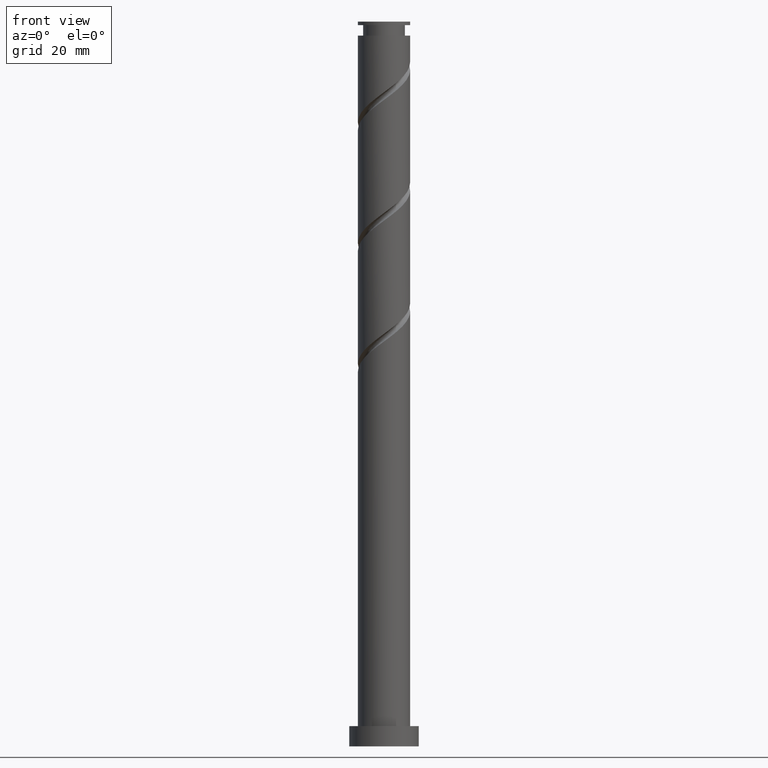
[diagram: clean part render]
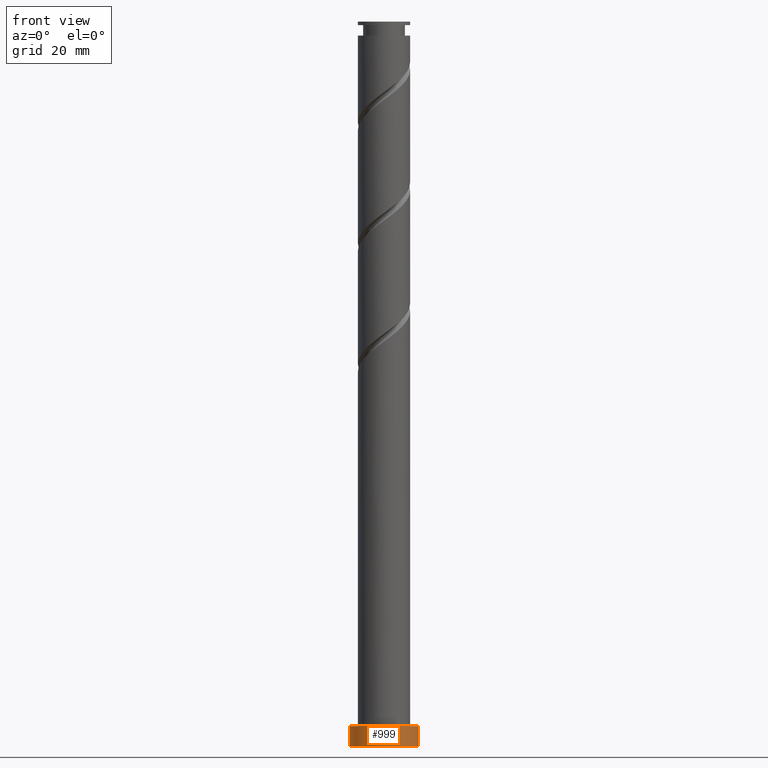
[diagram: same view with one face highlighted and labeled with its STEP entity id]
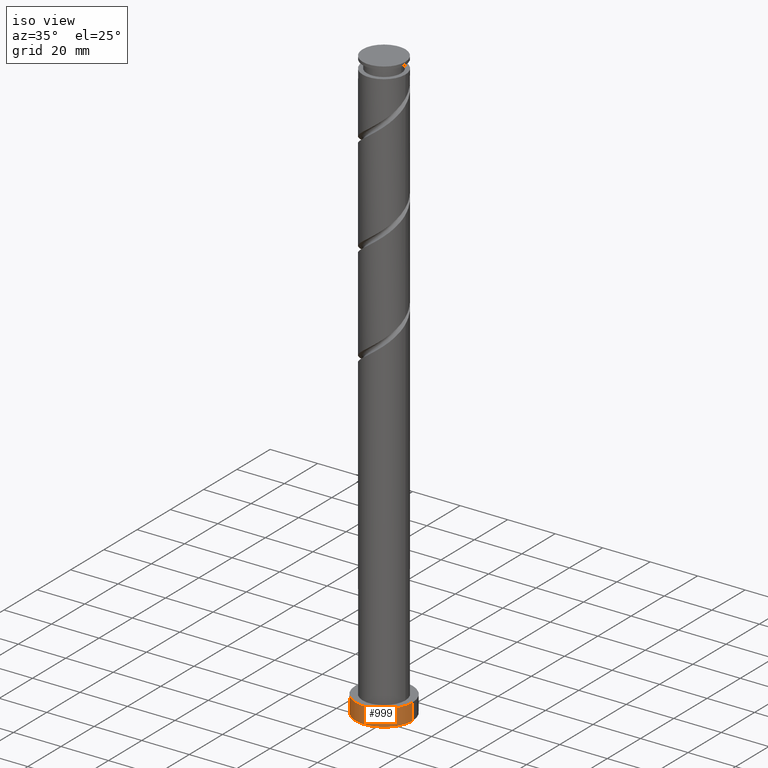
[diagram: same view with one face highlighted and labeled with its STEP entity id]
A machine part, front view. The second image highlights one B-rep face of the part: STEP entity #999.
A second angle (iso view) of the same face is appended — the face is thin or edge-on in the first view.
In plain terms, the highlighted cylindrical surface (edge-blend (fillet) strip) has radius 12 mm, axis along (-0, -0, -1).
Its self-contained STEP definition (entity closure, byte-faithful):
#76 = CARTESIAN_POINT ( 'NONE',  ( -12.00000000000000178, 0.000000000000000000, 7.000000000000000000 ) ) ;
#139 = DIRECTION ( 'NONE',  ( 1.000000000000000000, 0.000000000000000000, 0.000000000000000000 ) ) ;
#184 = CARTESIAN_POINT ( 'NONE',  ( 12.00000000000000178, 1.469576158976824144E-15, 7.000000000000000000 ) ) ;
#226 = AXIS2_PLACEMENT_3D ( 'NONE', #1201, #1731, #1047 ) ;
#235 = VECTOR ( 'NONE', #1664, 1000.000000000000000 ) ;
#239 = ORIENTED_EDGE ( 'NONE', *, *, #246, .F. ) ;
#246 = EDGE_CURVE ( 'NONE', #992, #555, #1504, .T. ) ;
#386 = CARTESIAN_POINT ( 'NONE',  ( 0.000000000000000000, 0.000000000000000000, 7.000000000000000000 ) ) ;
#398 = CARTESIAN_POINT ( 'NONE',  ( -12.00000000000000178, 0.000000000000000000, 7.000000000000000000 ) ) ;
#422 = DIRECTION ( 'NONE',  ( -0.000000000000000000, -0.000000000000000000, -1.000000000000000000 ) ) ;
#551 = CARTESIAN_POINT ( 'NONE',  ( 12.00000000000000178, 1.469576158976824144E-15, 0.000000000000000000 ) ) ;
#555 = VERTEX_POINT ( 'NONE', #184 ) ;
#651 = EDGE_LOOP ( 'NONE', ( #895, #239, #1085, #885 ) ) ;
#741 = LINE ( 'NONE', #749, #1065 ) ;
#749 = CARTESIAN_POINT ( 'NONE',  ( 12.00000000000000178, 1.469576158976824144E-15, 7.000000000000000000 ) ) ;
#872 = DIRECTION ( 'NONE',  ( -1.000000000000000000, 0.000000000000000000, 0.000000000000000000 ) ) ;
#885 = ORIENTED_EDGE ( 'NONE', *, *, #1719, .T. ) ;
#895 = ORIENTED_EDGE ( 'NONE', *, *, #1209, .F. ) ;
#992 = VERTEX_POINT ( 'NONE', #398 ) ;
#999 = ADVANCED_FACE ( 'NONE', ( #1275 ), #1561, .T. ) ;
#1041 = AXIS2_PLACEMENT_3D ( 'NONE', #1188, #1439, #139 ) ;
#1047 = DIRECTION ( 'NONE',  ( 1.000000000000000000, 0.000000000000000000, 0.000000000000000000 ) ) ;
#1065 = VECTOR ( 'NONE', #1335, 1000.000000000000000 ) ;
#1085 = ORIENTED_EDGE ( 'NONE', *, *, #1227, .T. ) ;
#1188 = CARTESIAN_POINT ( 'NONE',  ( 0.000000000000000000, 0.000000000000000000, 7.000000000000000000 ) ) ;
#1195 = LINE ( 'NONE', #76, #235 ) ;
#1201 = CARTESIAN_POINT ( 'NONE',  ( 0.000000000000000000, 0.000000000000000000, 0.000000000000000000 ) ) ;
#1209 = EDGE_CURVE ( 'NONE', #555, #1400, #741, .T. ) ;
#1227 = EDGE_CURVE ( 'NONE', #992, #1458, #1195, .T. ) ;
#1275 = FACE_OUTER_BOUND ( 'NONE', #651, .T. ) ;
#1318 = AXIS2_PLACEMENT_3D ( 'NONE', #386, #422, #872 ) ;
#1335 = DIRECTION ( 'NONE',  ( -0.000000000000000000, -0.000000000000000000, -1.000000000000000000 ) ) ;
#1400 = VERTEX_POINT ( 'NONE', #551 ) ;
#1439 = DIRECTION ( 'NONE',  ( 0.000000000000000000, 0.000000000000000000, 1.000000000000000000 ) ) ;
#1458 = VERTEX_POINT ( 'NONE', #1821 ) ;
#1504 = CIRCLE ( 'NONE', #1041, 12.00000000000000178 ) ;
#1561 = CYLINDRICAL_SURFACE ( 'NONE', #1318, 12.00000000000000178 ) ;
#1664 = DIRECTION ( 'NONE',  ( -0.000000000000000000, -0.000000000000000000, -1.000000000000000000 ) ) ;
#1719 = EDGE_CURVE ( 'NONE', #1458, #1400, #1834, .T. ) ;
#1731 = DIRECTION ( 'NONE',  ( 0.000000000000000000, 0.000000000000000000, 1.000000000000000000 ) ) ;
#1821 = CARTESIAN_POINT ( 'NONE',  ( -12.00000000000000178, 0.000000000000000000, 0.000000000000000000 ) ) ;
#1834 = CIRCLE ( 'NONE', #226, 12.00000000000000178 ) ;